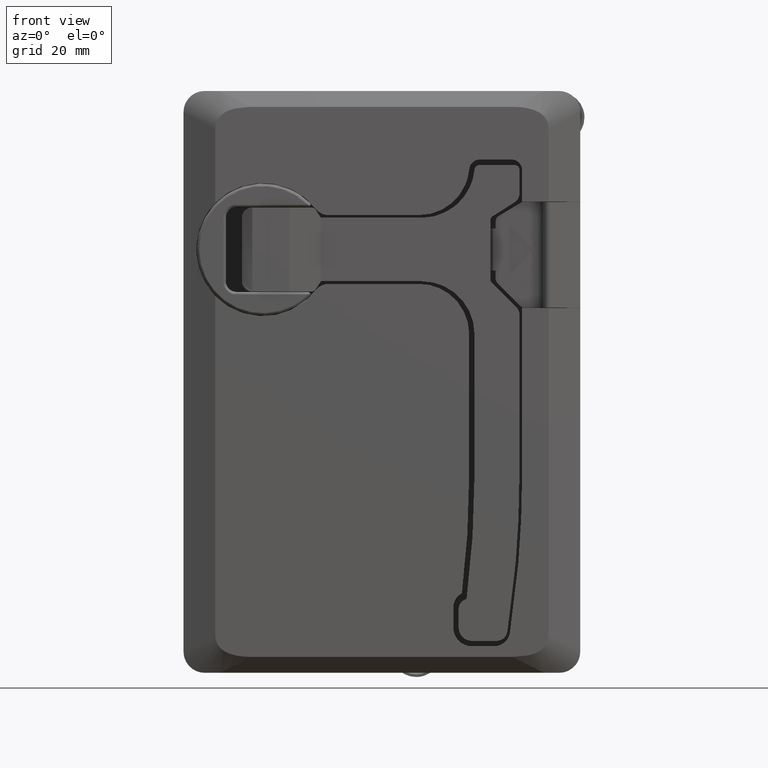
[diagram: clean part render]
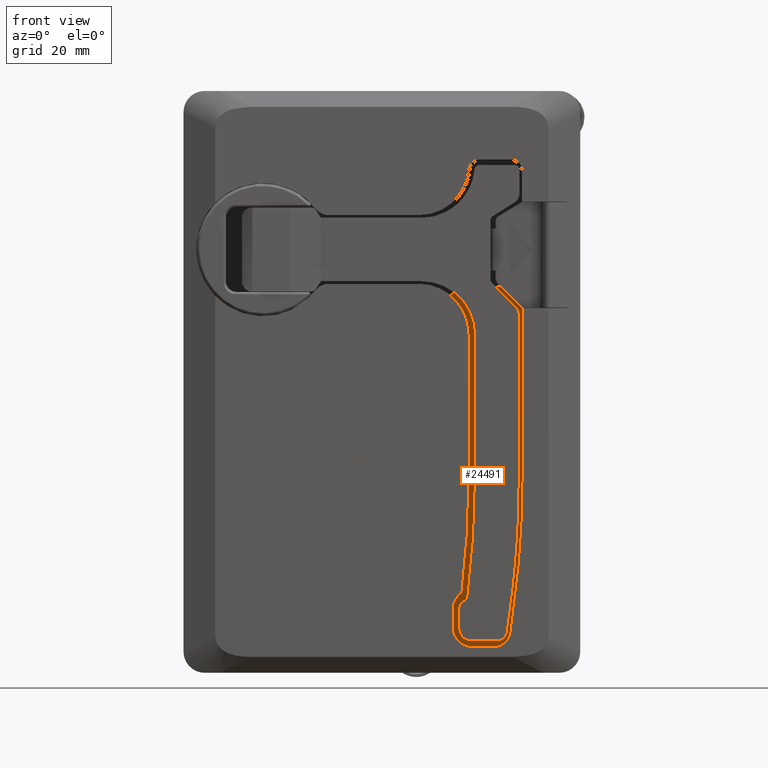
[diagram: same view with one face highlighted and labeled with its STEP entity id]
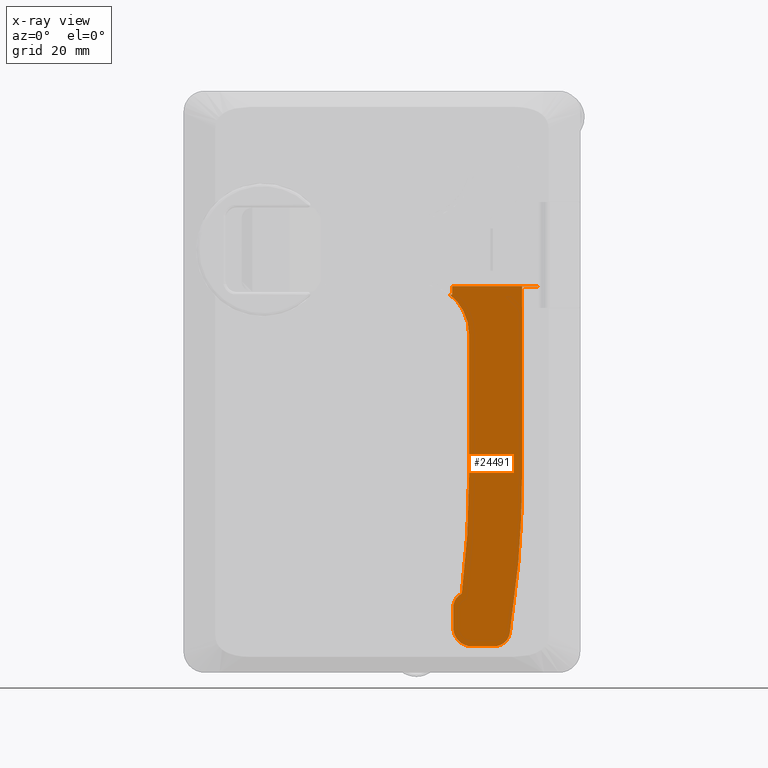
[diagram: x-ray of the same camera — body ghosted, the highlighted face saturated]
A machine part, front view. The second image highlights one B-rep face of the part: STEP entity #24491.
The next image is the same camera in x-ray: the body ghosted, the highlighted face saturated — about 0% of this face is hidden behind the body in this view.
In plain terms, the highlighted face is a freeform B-spline surface patch.
Its self-contained STEP definition (entity closure, byte-faithful):
#16216=CARTESIAN_POINT('',(35.785521548139862,-16.300000000000001,-6.900000000000000));
#16217=VERTEX_POINT('',#16216);
#16218=CARTESIAN_POINT('',(51.999445687218902,-16.300000000000001,-6.900000000000000));
#16219=VERTEX_POINT('',#16218);
#16220=CARTESIAN_POINT('',(35.785521548139862,-16.300000000000001,-6.900000000000000));
#16221=CARTESIAN_POINT('',(51.999445687218902,-16.300000000000001,-6.900000000000000));
#16222=QUASI_UNIFORM_CURVE('',1,(#16220,#16221),.UNSPECIFIED.,.F.,.U.);
#16223=EDGE_CURVE('',#16217,#16219,#16222,.T.);
#16994=CARTESIAN_POINT('',(35.330397582064201,-16.300000000000001,-8.500000000000000));
#16995=VERTEX_POINT('',#16994);
#17003=CARTESIAN_POINT('',(35.785521548139862,-16.300000000000001,-8.500000000000000));
#17004=VERTEX_POINT('',#17003);
#17005=CARTESIAN_POINT('',(35.785521548139862,-16.300000000000001,-8.500000000000000));
#17006=CARTESIAN_POINT('',(35.330397582064201,-16.300000000000001,-8.500000000000000));
#17007=QUASI_UNIFORM_CURVE('',1,(#17005,#17006),.UNSPECIFIED.,.F.,.U.);
#17008=EDGE_CURVE('',#17004,#16995,#17007,.T.);
#17098=CARTESIAN_POINT('',(35.785521548139862,-16.300000000000001,-8.500000000000000));
#17099=CARTESIAN_POINT('',(35.785521548139862,-16.300000000000001,-6.900000000000000));
#17100=QUASI_UNIFORM_CURVE('',1,(#17098,#17099),.UNSPECIFIED.,.F.,.U.);
#17101=EDGE_CURVE('',#17004,#16217,#17100,.T.);
#18477=CARTESIAN_POINT('',(51.999445687218902,-16.300000000000001,-7.0));
#18478=VERTEX_POINT('',#18477);
#18484=CARTESIAN_POINT('',(48.999445687218902,-16.300000000000001,-7.0));
#18485=VERTEX_POINT('',#18484);
#18486=CARTESIAN_POINT('',(51.999445687218902,-16.300000000000001,-7.0));
#18487=CARTESIAN_POINT('',(48.999445687218902,-16.300000000000001,-7.0));
#18488=QUASI_UNIFORM_CURVE('',1,(#18486,#18487),.UNSPECIFIED.,.F.,.U.);
#18489=EDGE_CURVE('',#18478,#18485,#18488,.T.);
#18526=CARTESIAN_POINT('',(51.999445687218902,-16.300000000000001,-6.900000000000000));
#18527=CARTESIAN_POINT('',(51.999445687218902,-16.300000000000001,-7.0));
#18528=QUASI_UNIFORM_CURVE('',1,(#18526,#18527),.UNSPECIFIED.,.F.,.U.);
#18529=EDGE_CURVE('',#16219,#18478,#18528,.T.);
#19627=CARTESIAN_POINT('',(38.999445687218902,-16.300000000000001,-16.0));
#19628=VERTEX_POINT('',#19627);
#19634=CARTESIAN_POINT('',(38.999445687218902,-16.300000000000001,-16.0));
#19635=CARTESIAN_POINT('',(38.999635833610263,-16.300000000000001,-15.234578231009870));
#19636=CARTESIAN_POINT('',(38.829828797686353,-16.299999999999990,-13.838939571613810));
#19637=CARTESIAN_POINT('',(38.239283146675540,-16.300000000000001,-12.176057840900921));
#19638=CARTESIAN_POINT('',(37.507344983584503,-16.299999999999990,-10.828746010293170));
#19639=CARTESIAN_POINT('',(36.617051232113361,-16.300000000000079,-9.632492181535092));
#19640=CARTESIAN_POINT('',(35.792518078508863,-16.299999999999930,-8.859210729828764));
#19641=CARTESIAN_POINT('',(35.330397582064201,-16.300000000000001,-8.500000000000000));
#19642=B_SPLINE_CURVE_WITH_KNOTS('',3,(#19634,#19635,#19636,#19637,#19638,#19639,#19640,#19641),.UNSPECIFIED.,.F.,.U.,(4,1,1,1,1,4),(0.000000020390349,2.296224256083209,4.187237967381567,5.267790608239203,6.888675196990988,8.644607601257931),.UNSPECIFIED.);
#19643=EDGE_CURVE('',#19628,#16995,#19642,.T.);
#19661=CARTESIAN_POINT('',(38.999445687218902,-16.300000000000001,-42.488999999999997));
#19662=VERTEX_POINT('',#19661);
#19668=CARTESIAN_POINT('',(38.999445687218902,-16.300000000000001,-42.488999999999997));
#19669=CARTESIAN_POINT('',(38.999445687218902,-16.300000000000001,-16.0));
#19670=QUASI_UNIFORM_CURVE('',1,(#19668,#19669),.UNSPECIFIED.,.F.,.U.);
#19671=EDGE_CURVE('',#19662,#19628,#19670,.T.);
#19706=CARTESIAN_POINT('',(37.624697815465453,-16.300000000000001,-64.999999869627700));
#19707=VERTEX_POINT('',#19706);
#19713=CARTESIAN_POINT('',(37.624697815465453,-16.300000000000001,-64.999999869627700));
#19714=CARTESIAN_POINT('',(38.999445687218895,-16.299999999999997,-53.786477894963078));
#19715=CARTESIAN_POINT('',(38.999445687218888,-16.300000000000001,-42.488999999999997));
#19723=(BOUNDED_CURVE()B_SPLINE_CURVE(2,(#19713,#19714,#19715),.UNSPECIFIED.,.F.,.U.)CURVE()GEOMETRIC_REPRESENTATION_ITEM()QUASI_UNIFORM_CURVE()RATIONAL_B_SPLINE_CURVE((1.0,0.998140424446938,1.0))REPRESENTATION_ITEM(''));
#19724=EDGE_CURVE('',#19707,#19662,#19723,.T.);
#19756=CARTESIAN_POINT('',(35.999445687218902,-16.300000000000001,-67.666471000000101));
#19757=VERTEX_POINT('',#19756);
#19763=CARTESIAN_POINT('',(37.624697815465453,-16.300000000000001,-64.999999869627700));
#19764=CARTESIAN_POINT('',(37.381388568506999,-16.300000000000011,-65.125349966170205));
#19765=CARTESIAN_POINT('',(36.943610414021528,-16.299999999999990,-65.433344535221096));
#19766=CARTESIAN_POINT('',(36.492005010628738,-16.300000000000018,-65.977458902376952));
#19767=CARTESIAN_POINT('',(36.112126432433691,-16.299999999999979,-66.708833263821987));
#19768=CARTESIAN_POINT('',(35.999026638585057,-16.300000000000011,-67.272949805322114));
#19769=CARTESIAN_POINT('',(35.999445687218902,-16.300000000000001,-67.666471000000101));
#19770=B_SPLINE_CURVE_WITH_KNOTS('',3,(#19763,#19764,#19765,#19766,#19767,#19768,#19769),.UNSPECIFIED.,.F.,.U.,(4,1,1,1,4),(0.000000096451828,0.821089131439526,1.590888639422611,2.104035906874152,3.284355507693295),.UNSPECIFIED.);
#19771=EDGE_CURVE('',#19707,#19757,#19770,.T.);
#19789=CARTESIAN_POINT('',(35.999445687218902,-16.300000000000001,-71.500000000000000));
#19790=VERTEX_POINT('',#19789);
#19796=CARTESIAN_POINT('',(35.999445687218902,-16.300000000000001,-71.500000000000000));
#19797=CARTESIAN_POINT('',(35.999445687218902,-16.300000000000001,-67.666471000000101));
#19798=QUASI_UNIFORM_CURVE('',1,(#19796,#19797),.UNSPECIFIED.,.F.,.U.);
#19799=EDGE_CURVE('',#19790,#19757,#19798,.T.);
#19834=CARTESIAN_POINT('',(39.499445687218902,-16.300000000000001,-75.0));
#19835=VERTEX_POINT('',#19834);
#19841=CARTESIAN_POINT('',(35.999445687218902,-16.300000000000001,-71.500000000000000));
#19842=CARTESIAN_POINT('',(35.999067377502193,-16.299999999999962,-71.929591317226993));
#19843=CARTESIAN_POINT('',(36.122299487813521,-16.300000000000018,-72.587834928182900));
#19844=CARTESIAN_POINT('',(36.575066243934252,-16.299999999999990,-73.487440677989781));
#19845=CARTESIAN_POINT('',(37.104423720591889,-16.300000000000029,-74.101118060640957));
#19846=CARTESIAN_POINT('',(37.763183974758221,-16.299999999999951,-74.564922270593925));
#19847=CARTESIAN_POINT('',(38.525999956557783,-16.300000000000111,-74.903123395140256));
#19848=CARTESIAN_POINT('',(39.127168689658632,-16.299999999999880,-75.000203992582442));
#19849=CARTESIAN_POINT('',(39.499445687218902,-16.300000000000001,-75.0));
#19850=B_SPLINE_CURVE_WITH_KNOTS('',3,(#19841,#19842,#19843,#19844,#19845,#19846,#19847,#19848,#19849),.UNSPECIFIED.,.F.,.U.,(4,1,1,1,1,1,4),(0.000000068308714,1.288575709346930,1.975825459496206,3.006668813314462,3.693914798205349,4.381160521471431,5.497925105170847),.UNSPECIFIED.);
#19851=EDGE_CURVE('',#19790,#19835,#19850,.T.);
#19869=CARTESIAN_POINT('',(43.717864651518553,-16.300000000000001,-75.0));
#19870=VERTEX_POINT('',#19869);
#19876=CARTESIAN_POINT('',(43.717864651518553,-16.300000000000001,-75.0));
#19877=CARTESIAN_POINT('',(39.499445687218902,-16.300000000000001,-75.0));
#19878=QUASI_UNIFORM_CURVE('',1,(#19876,#19877),.UNSPECIFIED.,.F.,.U.);
#19879=EDGE_CURVE('',#19870,#19835,#19878,.T.);
#19912=CARTESIAN_POINT('',(46.682214036977200,-16.300000000000001,-72.461121156455391));
#19913=VERTEX_POINT('',#19912);
#19919=CARTESIAN_POINT('',(43.717864651518553,-16.300000000000001,-75.0));
#19920=CARTESIAN_POINT('',(44.094141691032618,-16.300000000000001,-75.000308910440154));
#19921=CARTESIAN_POINT('',(44.780069827922809,-16.300000000000011,-74.869229471900255));
#19922=CARTESIAN_POINT('',(45.533199285542047,-16.299999999999990,-74.426663395242542));
#19923=CARTESIAN_POINT('',(46.041285300117032,-16.299999999999962,-73.929225957216346));
#19924=CARTESIAN_POINT('',(46.454437886897857,-16.300000000000100,-73.321515539680064));
#19925=CARTESIAN_POINT('',(46.631381700543791,-16.299999999999919,-72.789221485307564));
#19926=CARTESIAN_POINT('',(46.682214036977200,-16.300000000000001,-72.461121156455391));
#19927=B_SPLINE_CURVE_WITH_KNOTS('',3,(#19919,#19920,#19921,#19922,#19923,#19924,#19925,#19926),.UNSPECIFIED.,.F.,.U.,(4,1,1,1,1,4),(0.000000127962653,1.128781654361569,2.058380560134325,2.589546548660612,3.253541173300686,4.249519229233196),.UNSPECIFIED.);
#19928=EDGE_CURVE('',#19870,#19913,#19927,.T.);
#19963=CARTESIAN_POINT('',(48.999445687218902,-16.300000000000001,-42.488999999999997));
#19964=VERTEX_POINT('',#19963);
#19970=CARTESIAN_POINT('',(46.682214036977257,-16.300000000000001,-72.461121156455448));
#19971=CARTESIAN_POINT('',(48.999445687218923,-16.300000000000001,-57.564636529373317));
#19972=CARTESIAN_POINT('',(48.999445687218923,-16.300000000000001,-42.488999999999997));
#19980=(BOUNDED_CURVE()B_SPLINE_CURVE(2,(#19970,#19971,#19972),.UNSPECIFIED.,.F.,.U.)CURVE()GEOMETRIC_REPRESENTATION_ITEM()QUASI_UNIFORM_CURVE()RATIONAL_B_SPLINE_CURVE((1.0,0.997024689217765,1.0))REPRESENTATION_ITEM(''));
#19981=EDGE_CURVE('',#19913,#19964,#19980,.T.);
#24343=CARTESIAN_POINT('',(48.999445687218902,-16.300000000000001,-7.0));
#24344=CARTESIAN_POINT('',(48.999445687218902,-16.300000000000001,-42.488999999999997));
#24345=QUASI_UNIFORM_CURVE('',1,(#24343,#24344),.UNSPECIFIED.,.F.,.U.);
#24346=EDGE_CURVE('',#18485,#19964,#24345,.T.);
#24469=CARTESIAN_POINT('',(34.497779540828610,-16.300000000000001,-3.498405131991009));
#24470=CARTESIAN_POINT('',(52.832066262013853,-16.300000000000001,-3.498405131991009));
#24471=CARTESIAN_POINT('',(34.497779540828610,-16.300000000000001,-78.401596694593323));
#24472=CARTESIAN_POINT('',(52.832066262013853,-16.300000000000001,-78.401596694593323));
#24473=B_SPLINE_SURFACE_WITH_KNOTS('',1,1,((#24469,#24471),(#24470,#24472)),.UNSPECIFIED.,.F.,.F.,.U.,(2,2),(2,2),(0.0,18.334286721185240),(0.0,74.903191562602316),.UNSPECIFIED.);
#24474=ORIENTED_EDGE('',*,*,#16223,.F.);
#24475=ORIENTED_EDGE('',*,*,#17101,.F.);
#24476=ORIENTED_EDGE('',*,*,#17008,.T.);
#24477=ORIENTED_EDGE('',*,*,#19643,.F.);
#24478=ORIENTED_EDGE('',*,*,#19671,.F.);
#24479=ORIENTED_EDGE('',*,*,#19724,.F.);
#24480=ORIENTED_EDGE('',*,*,#19771,.T.);
#24481=ORIENTED_EDGE('',*,*,#19799,.F.);
#24482=ORIENTED_EDGE('',*,*,#19851,.T.);
#24483=ORIENTED_EDGE('',*,*,#19879,.F.);
#24484=ORIENTED_EDGE('',*,*,#19928,.T.);
#24485=ORIENTED_EDGE('',*,*,#19981,.T.);
#24486=ORIENTED_EDGE('',*,*,#24346,.F.);
#24487=ORIENTED_EDGE('',*,*,#18489,.F.);
#24488=ORIENTED_EDGE('',*,*,#18529,.F.);
#24489=EDGE_LOOP('',(#24474,#24475,#24476,#24477,#24478,#24479,#24480,#24481,#24482,#24483,#24484,#24485,#24486,#24487,#24488));
#24490=FACE_OUTER_BOUND('',#24489,.T.);
#24491=ADVANCED_FACE('',(#24490),#24473,.F.);